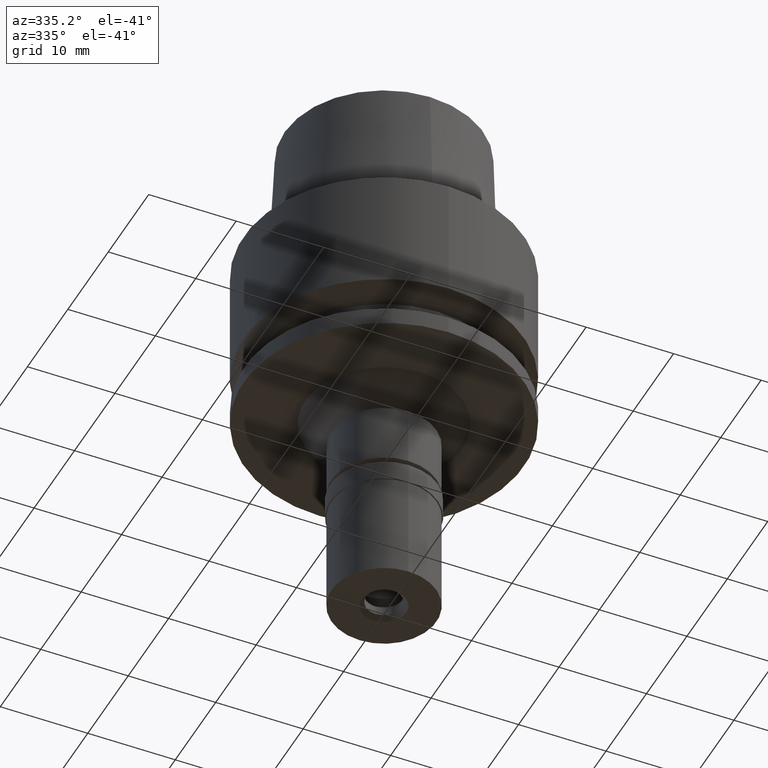
[diagram: clean part render]
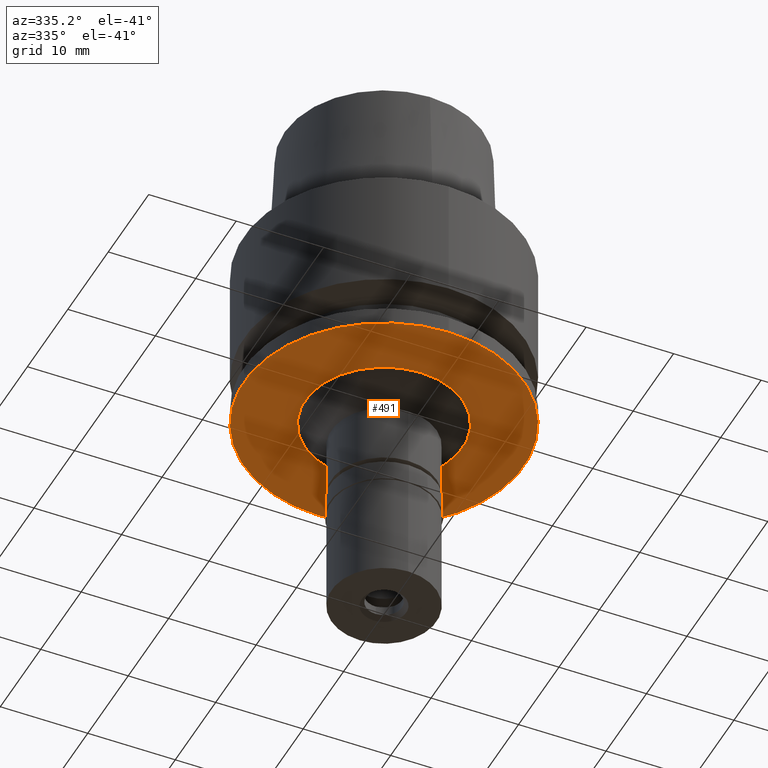
[diagram: same view with one face highlighted and labeled with its STEP entity id]
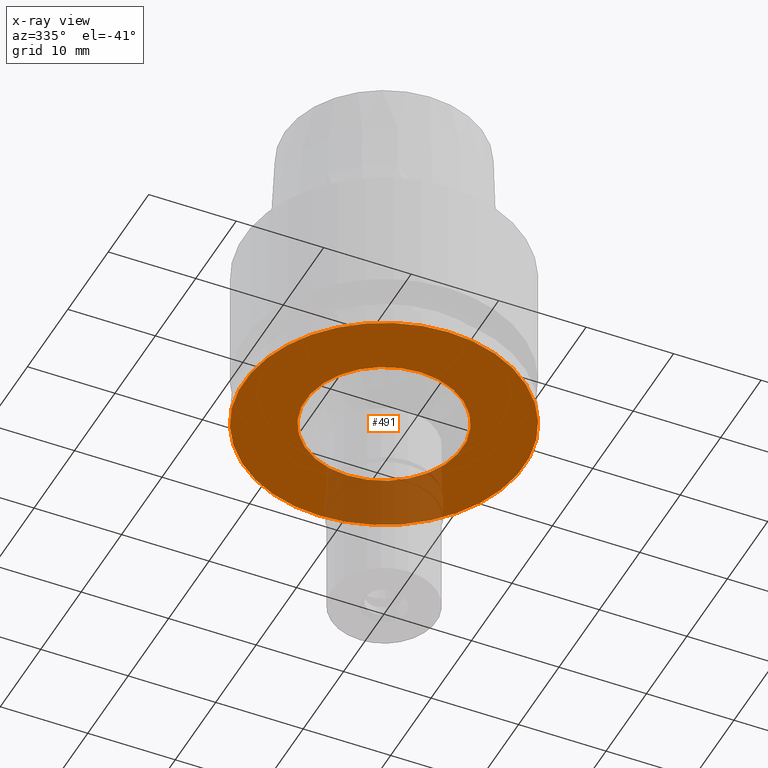
[diagram: x-ray of the same camera — body ghosted, the highlighted face saturated]
A machine part, auxiliary view. The second image highlights one B-rep face of the part: STEP entity #491.
The next image is the same camera in x-ray: the body ghosted, the highlighted face saturated — about 16% of this face is hidden behind the body in this view.
In plain terms, the highlighted planar face has unit normal (0, 0, 1).
Its self-contained STEP definition (entity closure, byte-faithful):
#159 = DIRECTION ( 'NONE',  ( 0.0000000000000000000, 1.000000000000000000, 0.0000000000000000000 ) ) ;
#254 = AXIS2_PLACEMENT_3D ( 'NONE', #2674, #804, #1650 ) ;
#303 = AXIS2_PLACEMENT_3D ( 'NONE', #1806, #1594, #503 ) ;
#335 = VERTEX_POINT ( 'NONE', #1411 ) ;
#363 = CARTESIAN_POINT ( 'NONE',  ( 0.0000000000000000000, 0.0000000000000000000, -20.00000000000000000 ) ) ;
#475 = CARTESIAN_POINT ( 'NONE',  ( 0.0000000000000000000, 0.0000000000000000000, -20.00000000000000000 ) ) ;
#491 = ADVANCED_FACE ( 'NONE', ( #653, #1302 ), #2103, .F. ) ;
#503 = DIRECTION ( 'NONE',  ( 0.0000000000000000000, -1.000000000000000000, 0.0000000000000000000 ) ) ;
#653 = FACE_OUTER_BOUND ( 'NONE', #823, .T. ) ;
#710 = EDGE_CURVE ( 'NONE', #1192, #335, #1661, .T. ) ;
#804 = DIRECTION ( 'NONE',  ( 0.0000000000000000000, 0.0000000000000000000, 1.000000000000000000 ) ) ;
#823 = EDGE_LOOP ( 'NONE', ( #1165, #1477 ) ) ;
#852 = DIRECTION ( 'NONE',  ( 0.0000000000000000000, 0.0000000000000000000, 1.000000000000000000 ) ) ;
#911 = CIRCLE ( 'NONE', #1178, 9.000000000000000000 ) ;
#1005 = CIRCLE ( 'NONE', #303, 9.000000000000000000 ) ;
#1165 = ORIENTED_EDGE ( 'NONE', *, *, #2434, .F. ) ;
#1178 = AXIS2_PLACEMENT_3D ( 'NONE', #363, #1210, #159 ) ;
#1192 = VERTEX_POINT ( 'NONE', #2409 ) ;
#1210 = DIRECTION ( 'NONE',  ( 0.0000000000000000000, 0.0000000000000000000, -1.000000000000000000 ) ) ;
#1277 = CARTESIAN_POINT ( 'NONE',  ( 0.0000000000000000000, -9.000000000000000000, -20.00000000000000000 ) ) ;
#1302 = FACE_BOUND ( 'NONE', #2363, .T. ) ;
#1320 = DIRECTION ( 'NONE',  ( 0.0000000000000000000, -1.000000000000000000, 0.0000000000000000000 ) ) ;
#1411 = CARTESIAN_POINT ( 'NONE',  ( 0.0000000000000000000, 16.00000000000000000, -20.00000000000000000 ) ) ;
#1477 = ORIENTED_EDGE ( 'NONE', *, *, #710, .F. ) ;
#1575 = EDGE_CURVE ( 'NONE', #2114, #2587, #1005, .T. ) ;
#1594 = DIRECTION ( 'NONE',  ( 0.0000000000000000000, 0.0000000000000000000, -1.000000000000000000 ) ) ;
#1650 = DIRECTION ( 'NONE',  ( 0.0000000000000000000, 1.000000000000000000, 0.0000000000000000000 ) ) ;
#1661 = CIRCLE ( 'NONE', #2615, 16.00000000000000000 ) ;
#1664 = ORIENTED_EDGE ( 'NONE', *, *, #1940, .F. ) ;
#1698 = DIRECTION ( 'NONE',  ( 1.000000000000000000, 0.0000000000000000000, 0.0000000000000000000 ) ) ;
#1806 = CARTESIAN_POINT ( 'NONE',  ( 0.0000000000000000000, 0.0000000000000000000, -20.00000000000000000 ) ) ;
#1880 = CARTESIAN_POINT ( 'NONE',  ( 0.0000000000000000000, 0.0000000000000000000, -20.00000000000000000 ) ) ;
#1940 = EDGE_CURVE ( 'NONE', #2587, #2114, #911, .T. ) ;
#1995 = ORIENTED_EDGE ( 'NONE', *, *, #1575, .F. ) ;
#2103 = PLANE ( 'NONE',  #2695 ) ;
#2114 = VERTEX_POINT ( 'NONE', #1277 ) ;
#2174 = DIRECTION ( 'NONE',  ( 0.0000000000000000000, 0.0000000000000000000, 1.000000000000000000 ) ) ;
#2180 = CARTESIAN_POINT ( 'NONE',  ( 0.0000000000000000000, 9.000000000000000000, -20.00000000000000000 ) ) ;
#2302 = CIRCLE ( 'NONE', #254, 16.00000000000000000 ) ;
#2363 = EDGE_LOOP ( 'NONE', ( #1664, #1995 ) ) ;
#2409 = CARTESIAN_POINT ( 'NONE',  ( 0.0000000000000000000, -16.00000000000000000, -20.00000000000000000 ) ) ;
#2434 = EDGE_CURVE ( 'NONE', #335, #1192, #2302, .T. ) ;
#2587 = VERTEX_POINT ( 'NONE', #2180 ) ;
#2615 = AXIS2_PLACEMENT_3D ( 'NONE', #475, #2174, #1320 ) ;
#2674 = CARTESIAN_POINT ( 'NONE',  ( 0.0000000000000000000, 0.0000000000000000000, -20.00000000000000000 ) ) ;
#2695 = AXIS2_PLACEMENT_3D ( 'NONE', #1880, #852, #1698 ) ;